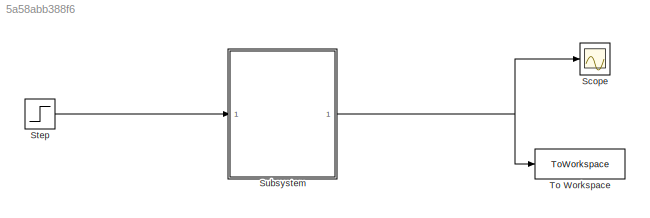
MODEL slx_5a58abb388f6
KIND model
CONFIG AbsTol = auto
CONFIG EnableMultiTasking = off
CONFIG FixedStep = auto
CONFIG MaxStep = auto
CONFIG MinStep = auto
CONFIG RelTol = 1e-3
CONFIG SampleTimeConstraint = Unconstrained
CONFIG Solver = VariableStepAuto
CONFIG SolverName = VariableStepAuto
CONFIG StartTime = 0.0
CONFIG StopTime = 15000
BLOCK [Scope] Scope
  Floating = off
  NumInputPorts = 1
  Ports = [1]
  ScopeSpecificationString = Simulink.scopes.TimeScopeBlockCfg('CurrentConfiguration', extmgr.ConfigurationSet(extmgr.Configuration('Core','General UI',true),extmgr.Configuration('Core','Source UI',true),extmgr.Configuration('Sources','WiredSimulink',true),extmgr.Configuration('Visuals','Time Domain',true,'SerializedDisplays',{struct('MinYLimReal','-6.97973','MaxYLimReal','12.81758','YLabelReal','','MinYLimMag','0.00000','Max...<+1362ch>
BLOCK [Step] Step
  After = 500
  SampleTime = 1
  Time = 10000
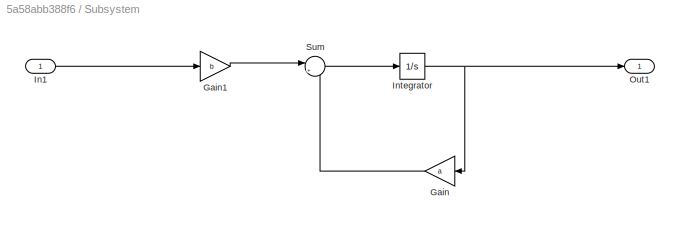
BLOCK [SubSystem] Subsystem
  Ports = [1, 1]
  RequestExecContextInheritance = off
BLOCK [Gain] Subsystem/Gain
  Gain = a
BLOCK [Gain] Subsystem/Gain1
  Gain = b
BLOCK [Inport] Subsystem/In1
BLOCK [Integrator] Subsystem/Integrator
  InitialCondition = -5
  Ports = [1, 1]
BLOCK [Outport] Subsystem/Out1
BLOCK [Sum] Subsystem/Sum
  Inputs = |++
  Ports = [2, 1]
BLOCK [ToWorkspace] To Workspace
  FixptAsFi = on
  MaxDataPoints = inf
  Ports = [1]
  SampleTime = -1
  VariableName = dva
LINE Step:1 -> Subsystem:1
LINE Subsystem/Gain1:1 -> Subsystem/Sum:1
LINE Subsystem/Gain:1 -> Subsystem/Sum:2
LINE Subsystem/In1:1 -> Subsystem/Gain1:1
NET Subsystem/Integrator:1 -> Subsystem/Gain:1, Subsystem/Out1:1
LINE Subsystem/Sum:1 -> Subsystem/Integrator:1
NET Subsystem:1 -> Scope:1, To Workspace:1
note: NET lines group one-source signal fan-out (src -> all destinations, sorted); 1:1 wires keep LINE
